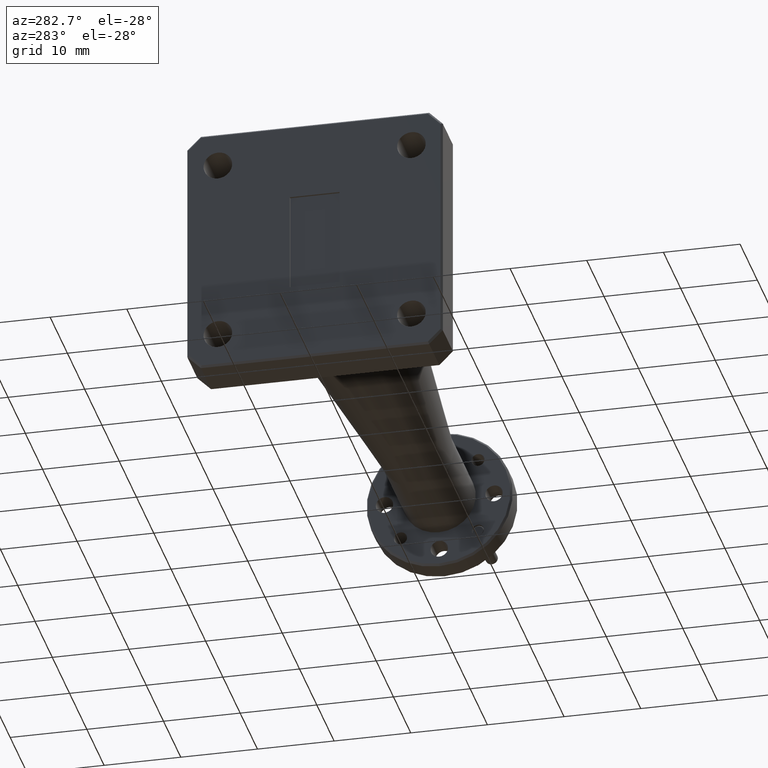
[diagram: clean part render]
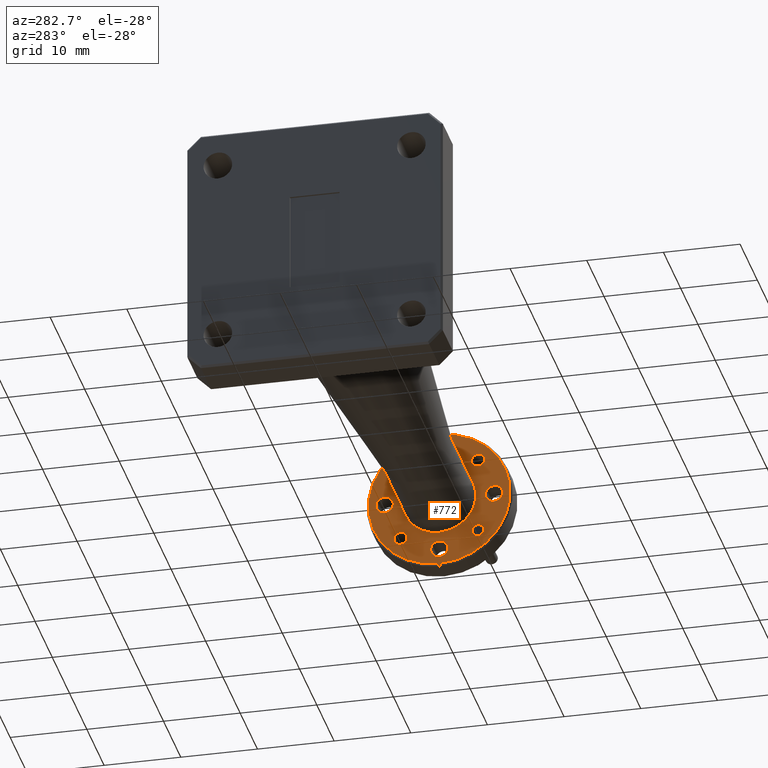
[diagram: same view with one face highlighted and labeled with its STEP entity id]
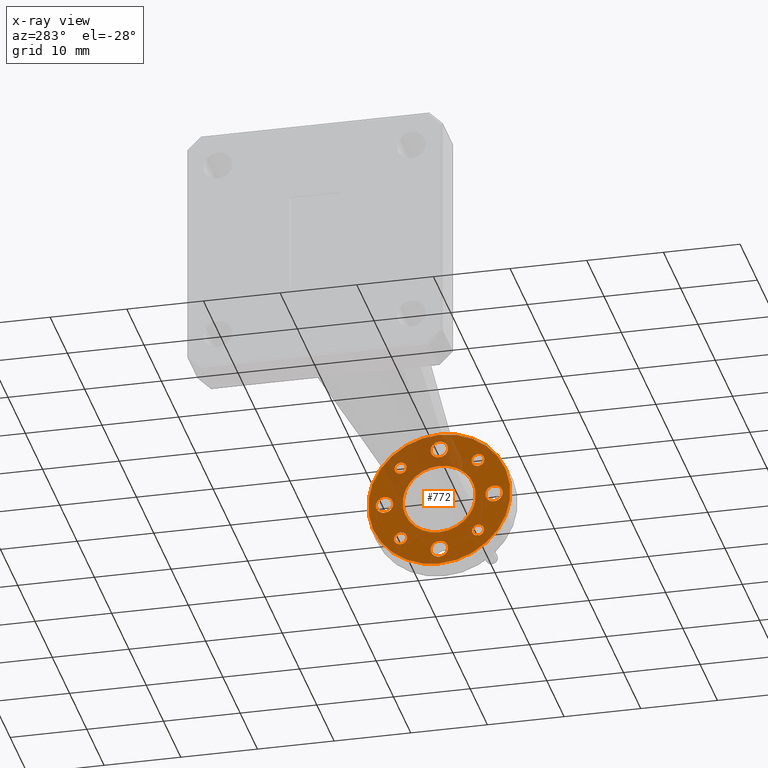
[diagram: x-ray of the same camera — body ghosted, the highlighted face saturated]
A machine part, auxiliary view. The second image highlights one B-rep face of the part: STEP entity #772.
The next image is the same camera in x-ray: the body ghosted, the highlighted face saturated — about 24% of this face is hidden behind the body in this view.
In plain terms, the highlighted planar face has unit normal (1, 0, 0).
Its self-contained STEP definition (entity closure, byte-faithful):
#1 = CIRCLE ( 'NONE', #55, 0.3649999999999995500 ) ;
#5 = VERTEX_POINT ( 'NONE', #194 ) ;
#55 = AXIS2_PLACEMENT_3D ( 'NONE', #2246, #1520, #2003 ) ;
#92 = CARTESIAN_POINT ( 'NONE',  ( 2.840000000000000300, -6.829619984160658000E-017, 0.2367500000000001800 ) ) ;
#102 = CIRCLE ( 'NONE', #2537, 0.03349999999999996000 ) ;
#108 = FACE_BOUND ( 'NONE', #708, .T. ) ;
#110 = EDGE_CURVE ( 'NONE', #1038, #2873, #929, .T. ) ;
#136 = DIRECTION ( 'NONE',  ( 1.000000000000000000, 0.0000000000000000000, 0.0000000000000000000 ) ) ;
#166 = VERTEX_POINT ( 'NONE', #2985 ) ;
#167 = EDGE_CURVE ( 'NONE', #3026, #1335, #1, .T. ) ;
#174 = CIRCLE ( 'NONE', #1371, 0.04449999999999972000 ) ;
#179 = FACE_BOUND ( 'NONE', #1395, .T. ) ;
#182 = CARTESIAN_POINT ( 'NONE',  ( 2.840000000000000300, 0.2812499999999999400, 0.04449999999999972000 ) ) ;
#194 = CARTESIAN_POINT ( 'NONE',  ( 2.840000000000000300, -0.2812500000000001700, 0.04449999999999969300 ) ) ;
#210 = AXIS2_PLACEMENT_3D ( 'NONE', #1567, #809, #743 ) ;
#214 = EDGE_LOOP ( 'NONE', ( #1663, #614 ) ) ;
#224 = EDGE_CURVE ( 'NONE', #2992, #2107, #1800, .T. ) ;
#230 = DIRECTION ( 'NONE',  ( 0.0000000000000000000, 0.0000000000000000000, -1.000000000000000000 ) ) ;
#235 = EDGE_CURVE ( 'NONE', #5, #2826, #3177, .T. ) ;
#251 = VERTEX_POINT ( 'NONE', #3034 ) ;
#304 = ORIENTED_EDGE ( 'NONE', *, *, #2770, .T. ) ;
#334 = ORIENTED_EDGE ( 'NONE', *, *, #845, .T. ) ;
#335 = CIRCLE ( 'NONE', #2575, 0.3649999999999995500 ) ;
#356 = VERTEX_POINT ( 'NONE', #1583 ) ;
#358 = EDGE_CURVE ( 'NONE', #2873, #1038, #1668, .T. ) ;
#390 = VERTEX_POINT ( 'NONE', #92 ) ;
#398 = ORIENTED_EDGE ( 'NONE', *, *, #2010, .T. ) ;
#433 = ORIENTED_EDGE ( 'NONE', *, *, #2376, .T. ) ;
#456 = ORIENTED_EDGE ( 'NONE', *, *, #1875, .T. ) ;
#491 = DIRECTION ( 'NONE',  ( 1.000000000000000000, 0.0000000000000000000, 0.0000000000000000000 ) ) ;
#512 = CARTESIAN_POINT ( 'NONE',  ( 2.840000000000000300, -0.1988737822087175700, -0.1988737822087153200 ) ) ;
#524 = DIRECTION ( 'NONE',  ( 0.0000000000000000000, 0.0000000000000000000, -1.000000000000000000 ) ) ;
#556 = CIRCLE ( 'NONE', #2783, 0.04449999999999972000 ) ;
#578 = EDGE_CURVE ( 'NONE', #1335, #3026, #335, .T. ) ;
#605 = CARTESIAN_POINT ( 'NONE',  ( 2.840000000000000300, 0.0000000000000000000, -0.3649999999999995500 ) ) ;
#609 = CIRCLE ( 'NONE', #2554, 0.04449999999999972000 ) ;
#610 = DIRECTION ( 'NONE',  ( 0.0000000000000000000, 0.0000000000000000000, 1.000000000000000000 ) ) ;
#614 = ORIENTED_EDGE ( 'NONE', *, *, #1636, .T. ) ;
#623 = EDGE_CURVE ( 'NONE', #2330, #890, #2522, .T. ) ;
#659 = CARTESIAN_POINT ( 'NONE',  ( 2.840000000000000300, 0.1988737822087175400, 0.1681237822087154600 ) ) ;
#668 = CARTESIAN_POINT ( 'NONE',  ( 2.840000000000000300, -0.1988737822087155200, 0.1653737822087173500 ) ) ;
#677 = DIRECTION ( 'NONE',  ( -1.000000000000000000, -0.0000000000000000000, -0.0000000000000000000 ) ) ;
#686 = CARTESIAN_POINT ( 'NONE',  ( 2.840000000000000300, -6.829619984160658000E-017, 0.2812499999999998900 ) ) ;
#697 = CARTESIAN_POINT ( 'NONE',  ( 2.840000000000000300, 0.1988737822087153200, -0.1988737822087176500 ) ) ;
#704 = EDGE_LOOP ( 'NONE', ( #2048, #1019 ) ) ;
#708 = EDGE_LOOP ( 'NONE', ( #1214, #456 ) ) ;
#709 = DIRECTION ( 'NONE',  ( 0.0000000000000000000, 0.0000000000000000000, 1.000000000000000000 ) ) ;
#715 = CIRCLE ( 'NONE', #2768, 0.04449999999999972000 ) ;
#724 = CARTESIAN_POINT ( 'NONE',  ( 2.840000000000000300, -0.1988737822087175700, -0.1988737822087153200 ) ) ;
#743 = DIRECTION ( 'NONE',  ( 0.0000000000000000000, 0.0000000000000000000, -1.000000000000000000 ) ) ;
#772 = ADVANCED_FACE ( 'NONE', ( #1995, #831, #179, #2333, #2757, #2103, #1436, #3078, #108, #1907 ), #985, .F. ) ;
#776 = CARTESIAN_POINT ( 'NONE',  ( 2.840000000000000300, 7.374587809781227200E-017, -0.2367500000000002900 ) ) ;
#801 = DIRECTION ( 'NONE',  ( 0.0000000000000000000, 0.0000000000000000000, -1.000000000000000000 ) ) ;
#802 = CARTESIAN_POINT ( 'NONE',  ( 2.840000000000000300, -0.1988737822087155200, 0.1988737822087172900 ) ) ;
#808 = DIRECTION ( 'NONE',  ( 0.0000000000000000000, 0.0000000000000000000, -1.000000000000000000 ) ) ;
#809 = DIRECTION ( 'NONE',  ( 1.000000000000000000, 0.0000000000000000000, 0.0000000000000000000 ) ) ;
#831 = FACE_BOUND ( 'NONE', #2469, .T. ) ;
#845 = EDGE_CURVE ( 'NONE', #2826, #5, #556, .T. ) ;
#886 = CARTESIAN_POINT ( 'NONE',  ( 2.840000000000000300, 0.0000000000000000000, 0.0000000000000000000 ) ) ;
#890 = VERTEX_POINT ( 'NONE', #1617 ) ;
#916 = CARTESIAN_POINT ( 'NONE',  ( 2.840000000000000300, 6.829619984160658000E-017, -0.2812500000000000000 ) ) ;
#920 = DIRECTION ( 'NONE',  ( 0.0000000000000000000, 0.0000000000000000000, -1.000000000000000000 ) ) ;
#929 = CIRCLE ( 'NONE', #946, 0.04449999999999972000 ) ;
#946 = AXIS2_PLACEMENT_3D ( 'NONE', #1757, #2731, #2031 ) ;
#951 = DIRECTION ( 'NONE',  ( 1.000000000000000000, 0.0000000000000000000, 0.0000000000000000000 ) ) ;
#955 = DIRECTION ( 'NONE',  ( 0.0000000000000000000, 0.0000000000000000000, -1.000000000000000000 ) ) ;
#957 = CIRCLE ( 'NONE', #1345, 0.1875000000000002800 ) ;
#976 = DIRECTION ( 'NONE',  ( 0.0000000000000000000, 0.0000000000000000000, -1.000000000000000000 ) ) ;
#985 = PLANE ( 'NONE',  #210 ) ;
#1019 = ORIENTED_EDGE ( 'NONE', *, *, #623, .T. ) ;
#1038 = VERTEX_POINT ( 'NONE', #182 ) ;
#1052 = CARTESIAN_POINT ( 'NONE',  ( 2.840000000000000300, -0.1988737822087155200, 0.1988737822087172900 ) ) ;
#1061 = DIRECTION ( 'NONE',  ( 1.000000000000000000, 0.0000000000000000000, 0.0000000000000000000 ) ) ;
#1072 = DIRECTION ( 'NONE',  ( 0.0000000000000000000, 0.0000000000000000000, -1.000000000000000000 ) ) ;
#1080 = CARTESIAN_POINT ( 'NONE',  ( 2.840000000000000300, 0.1988737822087175400, 0.1988737822087154300 ) ) ;
#1096 = EDGE_LOOP ( 'NONE', ( #304, #398 ) ) ;
#1133 = EDGE_CURVE ( 'NONE', #2313, #1255, #957, .T. ) ;
#1190 = CIRCLE ( 'NONE', #2006, 0.1875000000000002800 ) ;
#1214 = ORIENTED_EDGE ( 'NONE', *, *, #2677, .T. ) ;
#1234 = ORIENTED_EDGE ( 'NONE', *, *, #167, .T. ) ;
#1255 = VERTEX_POINT ( 'NONE', #1525 ) ;
#1296 = DIRECTION ( 'NONE',  ( 1.000000000000000000, 0.0000000000000000000, 0.0000000000000000000 ) ) ;
#1311 = CARTESIAN_POINT ( 'NONE',  ( 2.840000000000000300, -0.2812500000000001700, -3.414809992080329000E-017 ) ) ;
#1335 = VERTEX_POINT ( 'NONE', #2005 ) ;
#1339 = DIRECTION ( 'NONE',  ( 1.000000000000000000, 0.0000000000000000000, 0.0000000000000000000 ) ) ;
#1345 = AXIS2_PLACEMENT_3D ( 'NONE', #1477, #2219, #709 ) ;
#1350 = CIRCLE ( 'NONE', #2839, 0.04449999999999972000 ) ;
#1353 = ORIENTED_EDGE ( 'NONE', *, *, #224, .T. ) ;
#1364 = CARTESIAN_POINT ( 'NONE',  ( 2.840000000000000300, 0.1988737822087175400, 0.2296237822087154000 ) ) ;
#1371 = AXIS2_PLACEMENT_3D ( 'NONE', #2491, #491, #1758 ) ;
#1395 = EDGE_LOOP ( 'NONE', ( #1353, #1930 ) ) ;
#1400 = CARTESIAN_POINT ( 'NONE',  ( 2.840000000000000300, 6.829619984160658000E-017, -0.2812500000000000000 ) ) ;
#1414 = CARTESIAN_POINT ( 'NONE',  ( 2.840000000000000300, 0.1988737822087175400, 0.1988737822087154300 ) ) ;
#1423 = EDGE_LOOP ( 'NONE', ( #2432, #2431 ) ) ;
#1436 = FACE_BOUND ( 'NONE', #214, .T. ) ;
#1449 = CARTESIAN_POINT ( 'NONE',  ( 2.840000000000000300, -0.1988737822087175700, -0.1681237822087153500 ) ) ;
#1455 = CARTESIAN_POINT ( 'NONE',  ( 2.840000000000000300, 0.0000000000000000000, 0.0000000000000000000 ) ) ;
#1477 = CARTESIAN_POINT ( 'NONE',  ( 2.840000000000000300, 0.0000000000000000000, 0.0000000000000000000 ) ) ;
#1496 = CARTESIAN_POINT ( 'NONE',  ( 2.840000000000000300, 2.296212748401290800E-017, -0.1875000000000002800 ) ) ;
#1520 = DIRECTION ( 'NONE',  ( -1.000000000000000000, -0.0000000000000000000, -0.0000000000000000000 ) ) ;
#1525 = CARTESIAN_POINT ( 'NONE',  ( 2.840000000000000300, 0.0000000000000000000, 0.1875000000000002800 ) ) ;
#1567 = CARTESIAN_POINT ( 'NONE',  ( 2.840000000000000300, 0.1875000000000002800, 0.0000000000000000000 ) ) ;
#1573 = AXIS2_PLACEMENT_3D ( 'NONE', #2851, #136, #1072 ) ;
#1583 = CARTESIAN_POINT ( 'NONE',  ( 2.840000000000000300, 0.1988737822087153200, -0.1653737822087176800 ) ) ;
#1604 = EDGE_CURVE ( 'NONE', #356, #251, #102, .T. ) ;
#1617 = CARTESIAN_POINT ( 'NONE',  ( 2.840000000000000300, -0.1988737822087175700, -0.2296237822087152900 ) ) ;
#1636 = EDGE_CURVE ( 'NONE', #2390, #390, #174, .T. ) ;
#1663 = ORIENTED_EDGE ( 'NONE', *, *, #1996, .T. ) ;
#1668 = CIRCLE ( 'NONE', #1573, 0.04449999999999972000 ) ;
#1683 = DIRECTION ( 'NONE',  ( 1.000000000000000000, 0.0000000000000000000, 0.0000000000000000000 ) ) ;
#1689 = CARTESIAN_POINT ( 'NONE',  ( 2.840000000000000300, -0.2812500000000001700, -0.04449999999999975500 ) ) ;
#1692 = EDGE_CURVE ( 'NONE', #890, #2330, #2022, .T. ) ;
#1693 = VERTEX_POINT ( 'NONE', #776 ) ;
#1698 = EDGE_CURVE ( 'NONE', #2107, #2992, #2129, .T. ) ;
#1723 = DIRECTION ( 'NONE',  ( 0.0000000000000000000, 0.0000000000000000000, -1.000000000000000000 ) ) ;
#1757 = CARTESIAN_POINT ( 'NONE',  ( 2.840000000000000300, 0.2812499999999999400, 0.0000000000000000000 ) ) ;
#1758 = DIRECTION ( 'NONE',  ( 0.0000000000000000000, 0.0000000000000000000, -1.000000000000000000 ) ) ;
#1761 = CIRCLE ( 'NONE', #3129, 0.03349999999999996000 ) ;
#1767 = AXIS2_PLACEMENT_3D ( 'NONE', #1414, #3138, #1927 ) ;
#1791 = EDGE_CURVE ( 'NONE', #1255, #2313, #1190, .T. ) ;
#1800 = CIRCLE ( 'NONE', #2457, 0.03349999999999996000 ) ;
#1815 = DIRECTION ( 'NONE',  ( 0.0000000000000000000, 0.0000000000000000000, -1.000000000000000000 ) ) ;
#1865 = CARTESIAN_POINT ( 'NONE',  ( 2.840000000000000300, -0.2812500000000001700, -3.414809992080329000E-017 ) ) ;
#1874 = CIRCLE ( 'NONE', #1767, 0.03074999999999997200 ) ;
#1875 = EDGE_CURVE ( 'NONE', #1693, #166, #715, .T. ) ;
#1907 = FACE_BOUND ( 'NONE', #1423, .T. ) ;
#1908 = CARTESIAN_POINT ( 'NONE',  ( 2.840000000000000300, -0.1988737822087155200, 0.2323737822087172700 ) ) ;
#1927 = DIRECTION ( 'NONE',  ( 0.0000000000000000000, 0.0000000000000000000, -1.000000000000000000 ) ) ;
#1930 = ORIENTED_EDGE ( 'NONE', *, *, #1698, .T. ) ;
#1932 = DIRECTION ( 'NONE',  ( 1.000000000000000000, 0.0000000000000000000, 0.0000000000000000000 ) ) ;
#1995 = FACE_OUTER_BOUND ( 'NONE', #2900, .T. ) ;
#1996 = EDGE_CURVE ( 'NONE', #390, #2390, #1350, .T. ) ;
#2003 = DIRECTION ( 'NONE',  ( 0.0000000000000000000, 0.0000000000000000000, -1.000000000000000000 ) ) ;
#2005 = CARTESIAN_POINT ( 'NONE',  ( 2.840000000000000300, 4.531193156845206700E-017, 0.3649999999999995500 ) ) ;
#2006 = AXIS2_PLACEMENT_3D ( 'NONE', #886, #2652, #610 ) ;
#2010 = EDGE_CURVE ( 'NONE', #2319, #2928, #3040, .T. ) ;
#2022 = CIRCLE ( 'NONE', #2559, 0.03074999999999997200 ) ;
#2031 = DIRECTION ( 'NONE',  ( 0.0000000000000000000, 0.0000000000000000000, -1.000000000000000000 ) ) ;
#2048 = ORIENTED_EDGE ( 'NONE', *, *, #1692, .T. ) ;
#2103 = FACE_BOUND ( 'NONE', #2659, .T. ) ;
#2107 = VERTEX_POINT ( 'NONE', #1908 ) ;
#2129 = CIRCLE ( 'NONE', #2880, 0.03349999999999996000 ) ;
#2219 = DIRECTION ( 'NONE',  ( -1.000000000000000000, -0.0000000000000000000, -0.0000000000000000000 ) ) ;
#2220 = DIRECTION ( 'NONE',  ( 0.0000000000000000000, 0.0000000000000000000, -1.000000000000000000 ) ) ;
#2235 = ORIENTED_EDGE ( 'NONE', *, *, #1604, .T. ) ;
#2246 = CARTESIAN_POINT ( 'NONE',  ( 2.840000000000000300, 0.0000000000000000000, 0.0000000000000000000 ) ) ;
#2250 = AXIS2_PLACEMENT_3D ( 'NONE', #724, #2923, #976 ) ;
#2278 = DIRECTION ( 'NONE',  ( 1.000000000000000000, 0.0000000000000000000, 0.0000000000000000000 ) ) ;
#2313 = VERTEX_POINT ( 'NONE', #1496 ) ;
#2319 = VERTEX_POINT ( 'NONE', #1364 ) ;
#2330 = VERTEX_POINT ( 'NONE', #1449 ) ;
#2332 = ORIENTED_EDGE ( 'NONE', *, *, #358, .T. ) ;
#2333 = FACE_BOUND ( 'NONE', #1096, .T. ) ;
#2341 = DIRECTION ( 'NONE',  ( 1.000000000000000000, 0.0000000000000000000, 0.0000000000000000000 ) ) ;
#2376 = EDGE_CURVE ( 'NONE', #251, #356, #1761, .T. ) ;
#2390 = VERTEX_POINT ( 'NONE', #3156 ) ;
#2431 = ORIENTED_EDGE ( 'NONE', *, *, #1133, .F. ) ;
#2432 = ORIENTED_EDGE ( 'NONE', *, *, #1791, .F. ) ;
#2455 = DIRECTION ( 'NONE',  ( 1.000000000000000000, 0.0000000000000000000, 0.0000000000000000000 ) ) ;
#2457 = AXIS2_PLACEMENT_3D ( 'NONE', #1052, #1061, #524 ) ;
#2469 = EDGE_LOOP ( 'NONE', ( #433, #2235 ) ) ;
#2491 = CARTESIAN_POINT ( 'NONE',  ( 2.840000000000000300, -6.829619984160658000E-017, 0.2812499999999998900 ) ) ;
#2522 = CIRCLE ( 'NONE', #2250, 0.03074999999999997200 ) ;
#2537 = AXIS2_PLACEMENT_3D ( 'NONE', #3142, #1683, #920 ) ;
#2554 = AXIS2_PLACEMENT_3D ( 'NONE', #1400, #1932, #2897 ) ;
#2559 = AXIS2_PLACEMENT_3D ( 'NONE', #512, #2278, #3003 ) ;
#2575 = AXIS2_PLACEMENT_3D ( 'NONE', #1455, #677, #2220 ) ;
#2579 = DIRECTION ( 'NONE',  ( 1.000000000000000000, 0.0000000000000000000, 0.0000000000000000000 ) ) ;
#2593 = DIRECTION ( 'NONE',  ( 0.0000000000000000000, 0.0000000000000000000, -1.000000000000000000 ) ) ;
#2652 = DIRECTION ( 'NONE',  ( -1.000000000000000000, -0.0000000000000000000, -0.0000000000000000000 ) ) ;
#2659 = EDGE_LOOP ( 'NONE', ( #2332, #3189 ) ) ;
#2677 = EDGE_CURVE ( 'NONE', #166, #1693, #609, .T. ) ;
#2693 = DIRECTION ( 'NONE',  ( 1.000000000000000000, 0.0000000000000000000, 0.0000000000000000000 ) ) ;
#2731 = DIRECTION ( 'NONE',  ( 1.000000000000000000, 0.0000000000000000000, 0.0000000000000000000 ) ) ;
#2757 = FACE_BOUND ( 'NONE', #704, .T. ) ;
#2768 = AXIS2_PLACEMENT_3D ( 'NONE', #916, #2455, #1723 ) ;
#2770 = EDGE_CURVE ( 'NONE', #2928, #2319, #1874, .T. ) ;
#2775 = EDGE_LOOP ( 'NONE', ( #334, #3141 ) ) ;
#2783 = AXIS2_PLACEMENT_3D ( 'NONE', #1865, #2579, #2593 ) ;
#2814 = AXIS2_PLACEMENT_3D ( 'NONE', #1080, #1339, #808 ) ;
#2826 = VERTEX_POINT ( 'NONE', #1689 ) ;
#2839 = AXIS2_PLACEMENT_3D ( 'NONE', #686, #2693, #955 ) ;
#2848 = ORIENTED_EDGE ( 'NONE', *, *, #578, .T. ) ;
#2851 = CARTESIAN_POINT ( 'NONE',  ( 2.840000000000000300, 0.2812499999999999400, 0.0000000000000000000 ) ) ;
#2873 = VERTEX_POINT ( 'NONE', #3148 ) ;
#2880 = AXIS2_PLACEMENT_3D ( 'NONE', #802, #2341, #1815 ) ;
#2897 = DIRECTION ( 'NONE',  ( 0.0000000000000000000, 0.0000000000000000000, -1.000000000000000000 ) ) ;
#2900 = EDGE_LOOP ( 'NONE', ( #1234, #2848 ) ) ;
#2923 = DIRECTION ( 'NONE',  ( 1.000000000000000000, 0.0000000000000000000, 0.0000000000000000000 ) ) ;
#2928 = VERTEX_POINT ( 'NONE', #659 ) ;
#2985 = CARTESIAN_POINT ( 'NONE',  ( 2.840000000000000300, 6.829619984160658000E-017, -0.3257499999999997100 ) ) ;
#2992 = VERTEX_POINT ( 'NONE', #668 ) ;
#3000 = AXIS2_PLACEMENT_3D ( 'NONE', #1311, #1296, #801 ) ;
#3003 = DIRECTION ( 'NONE',  ( 0.0000000000000000000, 0.0000000000000000000, -1.000000000000000000 ) ) ;
#3026 = VERTEX_POINT ( 'NONE', #605 ) ;
#3034 = CARTESIAN_POINT ( 'NONE',  ( 2.840000000000000300, 0.1988737822087153200, -0.2323737822087176000 ) ) ;
#3040 = CIRCLE ( 'NONE', #2814, 0.03074999999999997200 ) ;
#3078 = FACE_BOUND ( 'NONE', #2775, .T. ) ;
#3129 = AXIS2_PLACEMENT_3D ( 'NONE', #697, #951, #230 ) ;
#3138 = DIRECTION ( 'NONE',  ( 1.000000000000000000, 0.0000000000000000000, 0.0000000000000000000 ) ) ;
#3141 = ORIENTED_EDGE ( 'NONE', *, *, #235, .T. ) ;
#3142 = CARTESIAN_POINT ( 'NONE',  ( 2.840000000000000300, 0.1988737822087153200, -0.1988737822087176500 ) ) ;
#3148 = CARTESIAN_POINT ( 'NONE',  ( 2.840000000000000300, 0.2812499999999999400, -0.04449999999999972000 ) ) ;
#3156 = CARTESIAN_POINT ( 'NONE',  ( 2.840000000000000300, -6.284652158540088900E-017, 0.3257499999999996500 ) ) ;
#3177 = CIRCLE ( 'NONE', #3000, 0.04449999999999972000 ) ;
#3189 = ORIENTED_EDGE ( 'NONE', *, *, #110, .T. ) ;